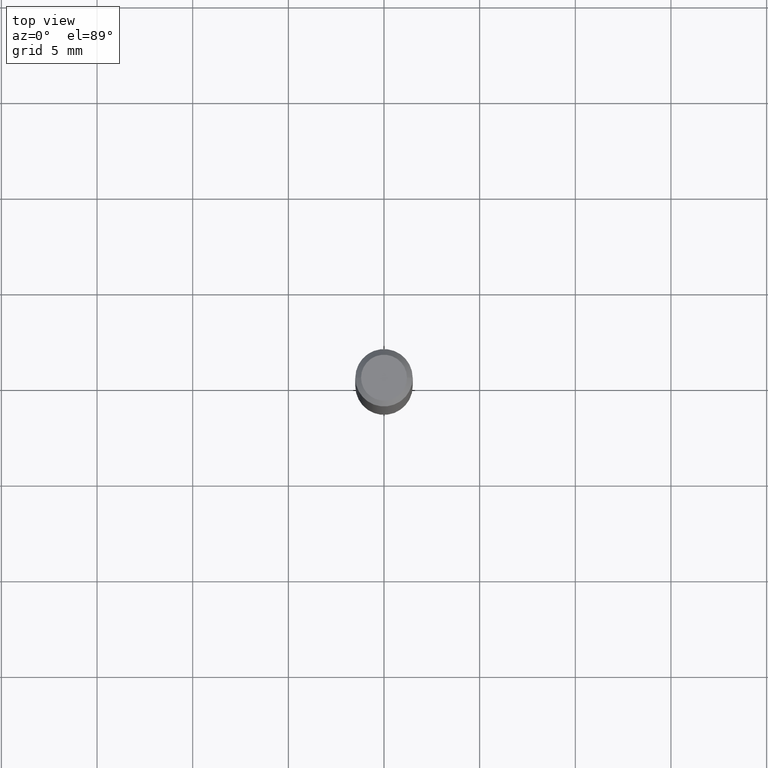
[diagram: clean part render]
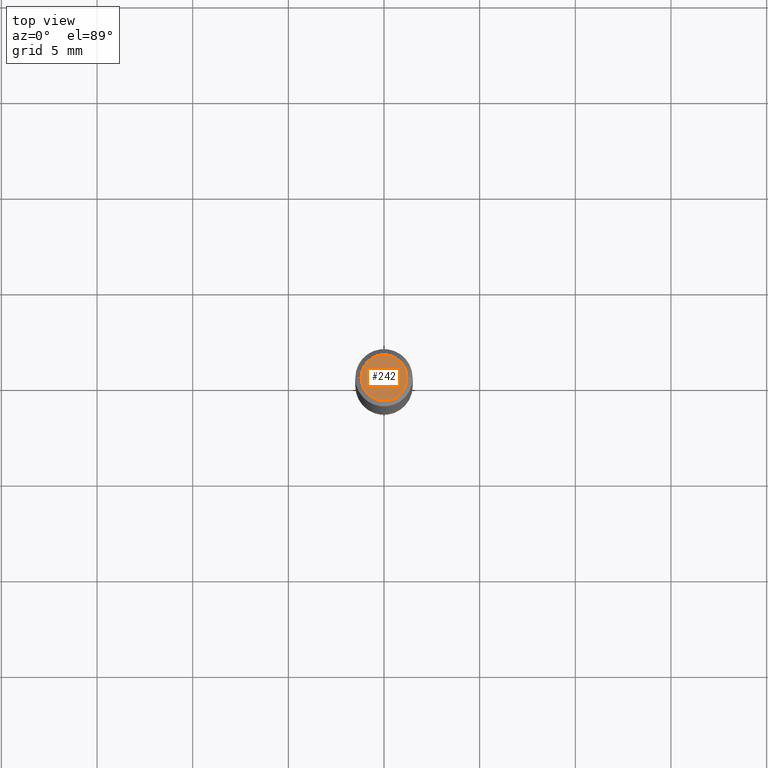
[diagram: same view with one face highlighted and labeled with its STEP entity id]
A machine part, top view. The second image highlights one B-rep face of the part: STEP entity #242.
In plain terms, the highlighted planar face has unit normal (0, -0, -1).
Its self-contained STEP definition (entity closure, byte-faithful):
#17 = PLANE ( 'NONE',  #70 ) ;
#32 = ORIENTED_EDGE ( 'NONE', *, *, #439, .T. ) ;
#42 = VERTEX_POINT ( 'NONE', #135 ) ;
#70 = AXIS2_PLACEMENT_3D ( 'NONE', #307, #463, #126 ) ;
#85 = CARTESIAN_POINT ( 'NONE',  ( -0.04724000000000000421, 3.504923541997677355E-16, -3.380025165670481712E-19 ) ) ;
#126 = DIRECTION ( 'NONE',  ( -1.000000000000000000, 6.982962677686265922E-15, -4.876176775795935793E-29 ) ) ;
#135 = CARTESIAN_POINT ( 'NONE',  ( 0.04724000000000000421, -3.852183633974369345E-16, -3.380025165621689721E-19 ) ) ;
#153 = EDGE_LOOP ( 'NONE', ( #382, #32 ) ) ;
#154 = AXIS2_PLACEMENT_3D ( 'NONE', #390, #235, #338 ) ;
#177 = CIRCLE ( 'NONE', #154, 0.04724000000000000421 ) ;
#227 = EDGE_CURVE ( 'NONE', #340, #42, #321, .T. ) ;
#235 = DIRECTION ( 'NONE',  ( -2.445468806185136597E-29, 3.491481338843145583E-15, 1.000000000000000000 ) ) ;
#239 = DIRECTION ( 'NONE',  ( 1.000000000000000000, -6.982962677686266711E-15, 4.876185090822587894E-29 ) ) ;
#242 = ADVANCED_FACE ( 'NONE', ( #388 ), #17, .F. ) ;
#272 = CARTESIAN_POINT ( 'NONE',  ( 8.265746106709734507E-48, -1.180129479067563789E-33, -3.380025165646692144E-19 ) ) ;
#307 = CARTESIAN_POINT ( 'NONE',  ( 4.132873053354867254E-48, -5.900647395337818946E-34, -1.690012582823346072E-19 ) ) ;
#317 = AXIS2_PLACEMENT_3D ( 'NONE', #272, #437, #239 ) ;
#321 = CIRCLE ( 'NONE', #317, 0.04724000000000000421 ) ;
#338 = DIRECTION ( 'NONE',  ( 1.000000000000000000, -6.982962677686266711E-15, 4.876185090822587894E-29 ) ) ;
#340 = VERTEX_POINT ( 'NONE', #85 ) ;
#382 = ORIENTED_EDGE ( 'NONE', *, *, #227, .T. ) ;
#388 = FACE_OUTER_BOUND ( 'NONE', #153, .T. ) ;
#390 = CARTESIAN_POINT ( 'NONE',  ( 8.265746106709734507E-48, -1.180129479067563789E-33, -3.380025165646692144E-19 ) ) ;
#437 = DIRECTION ( 'NONE',  ( -2.445468806185136597E-29, 3.491481338843145583E-15, 1.000000000000000000 ) ) ;
#439 = EDGE_CURVE ( 'NONE', #42, #340, #177, .T. ) ;
#463 = DIRECTION ( 'NONE',  ( 2.438088387897960049E-29, -3.491481338843145188E-15, -1.000000000000000000 ) ) ;